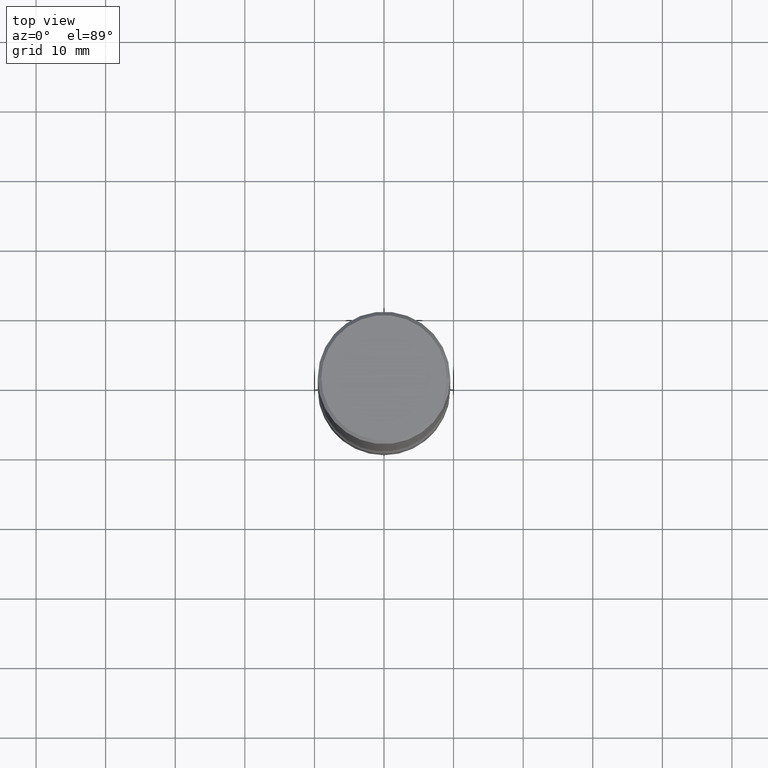
[diagram: clean part render]
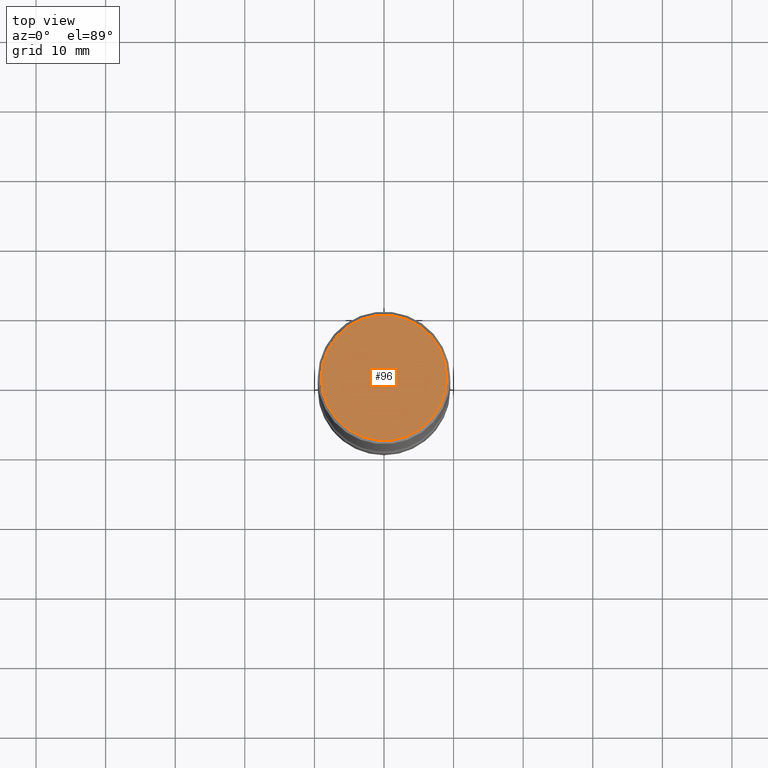
[diagram: same view with one face highlighted and labeled with its STEP entity id]
A machine part, top view. The second image highlights one B-rep face of the part: STEP entity #96.
In plain terms, the highlighted planar face has unit normal (-0, 0, 1).
Its self-contained STEP definition (entity closure, byte-faithful):
#26 = EDGE_CURVE ( 'NONE', #533, #300, #92, .T. ) ;
#37 = ORIENTED_EDGE ( 'NONE', *, *, #188, .F. ) ;
#45 = CARTESIAN_POINT ( 'NONE',  ( -0.3549999999999994826, 2.478951750578621053E-15, -1.731042755407554628E-29 ) ) ;
#64 = AXIS2_PLACEMENT_3D ( 'NONE', #93, #439, #182 ) ;
#68 = FACE_OUTER_BOUND ( 'NONE', #388, .T. ) ;
#92 = CIRCLE ( 'NONE', #405, 0.3549999999999994826 ) ;
#93 = CARTESIAN_POINT ( 'NONE',  ( 0.000000000000000000, 0.000000000000000000, 0.000000000000000000 ) ) ;
#96 = ADVANCED_FACE ( 'NONE', ( #68 ), #235, .T. ) ;
#132 = ORIENTED_EDGE ( 'NONE', *, *, #26, .F. ) ;
#172 = DIRECTION ( 'NONE',  ( 2.445468806185136597E-29, -3.491481338843145583E-15, -1.000000000000000000 ) ) ;
#182 = DIRECTION ( 'NONE',  ( -1.000000000000000000, 6.982962677686266711E-15, -4.876176775795935793E-29 ) ) ;
#188 = EDGE_CURVE ( 'NONE', #300, #533, #556, .T. ) ;
#222 = AXIS2_PLACEMENT_3D ( 'NONE', #321, #415, #366 ) ;
#235 = PLANE ( 'NONE',  #222 ) ;
#239 = CARTESIAN_POINT ( 'NONE',  ( 0.3549999999999994826, -2.538996582575037893E-15, 1.754627344940448002E-29 ) ) ;
#300 = VERTEX_POINT ( 'NONE', #239 ) ;
#321 = CARTESIAN_POINT ( 'NONE',  ( 2.478951750578621053E-15, 0.3549999999999994826, -1.237341619044264652E-15 ) ) ;
#366 = DIRECTION ( 'NONE',  ( 1.000000000000000000, -6.982962677686265922E-15, 4.876176775795935793E-29 ) ) ;
#388 = EDGE_LOOP ( 'NONE', ( #132, #37 ) ) ;
#393 = CARTESIAN_POINT ( 'NONE',  ( 0.000000000000000000, 0.000000000000000000, 0.000000000000000000 ) ) ;
#405 = AXIS2_PLACEMENT_3D ( 'NONE', #393, #172, #420 ) ;
#415 = DIRECTION ( 'NONE',  ( -2.438088387897960049E-29, 3.491481338843145188E-15, 1.000000000000000000 ) ) ;
#420 = DIRECTION ( 'NONE',  ( -1.000000000000000000, 6.982962677686266711E-15, -4.876176775795935793E-29 ) ) ;
#439 = DIRECTION ( 'NONE',  ( 2.445468806185136597E-29, -3.491481338843145583E-15, -1.000000000000000000 ) ) ;
#533 = VERTEX_POINT ( 'NONE', #45 ) ;
#556 = CIRCLE ( 'NONE', #64, 0.3549999999999994826 ) ;